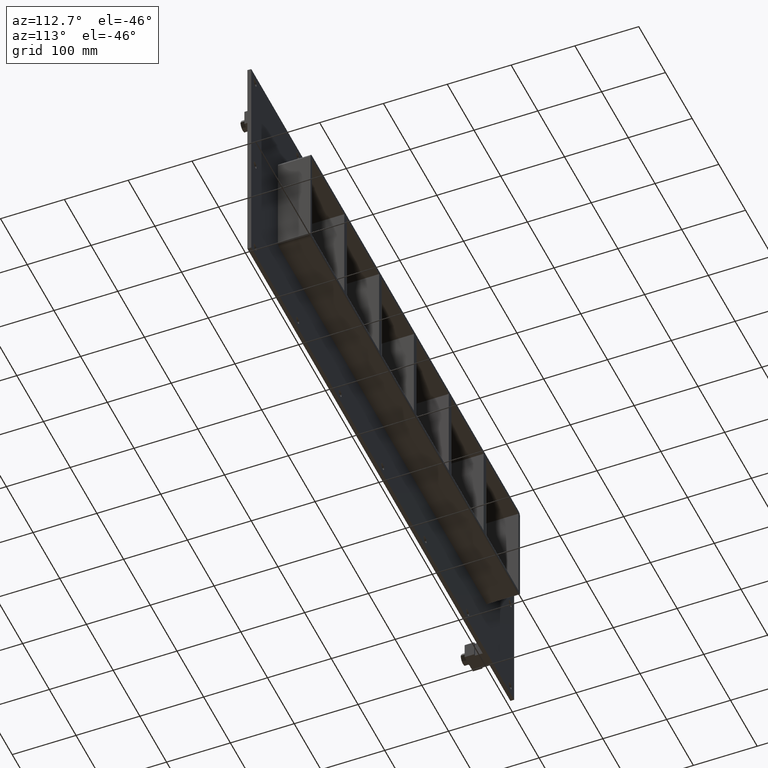
[diagram: clean part render]
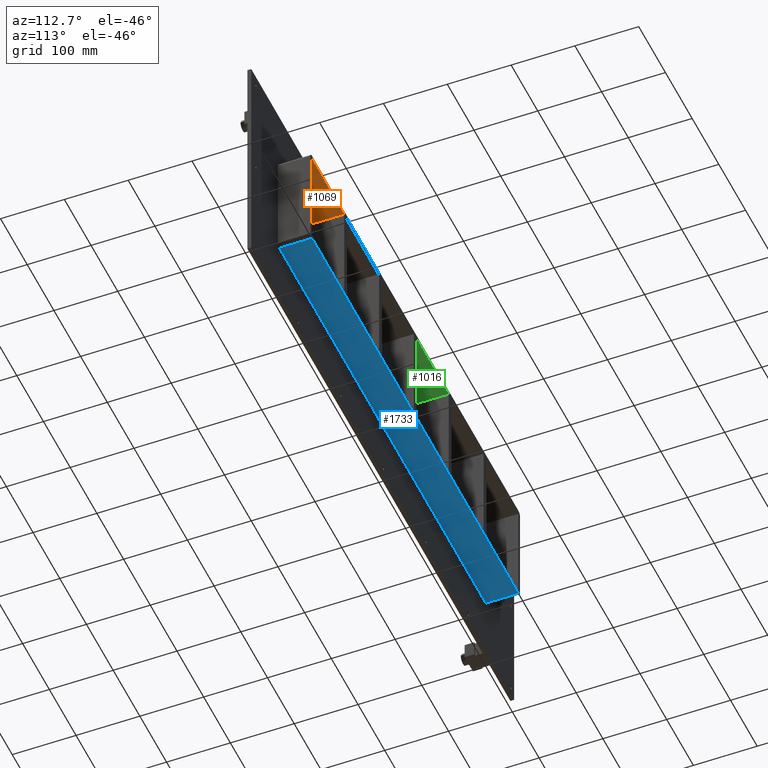
[diagram: same view with three faces highlighted in distinct colors, each labeled with its STEP entity id]
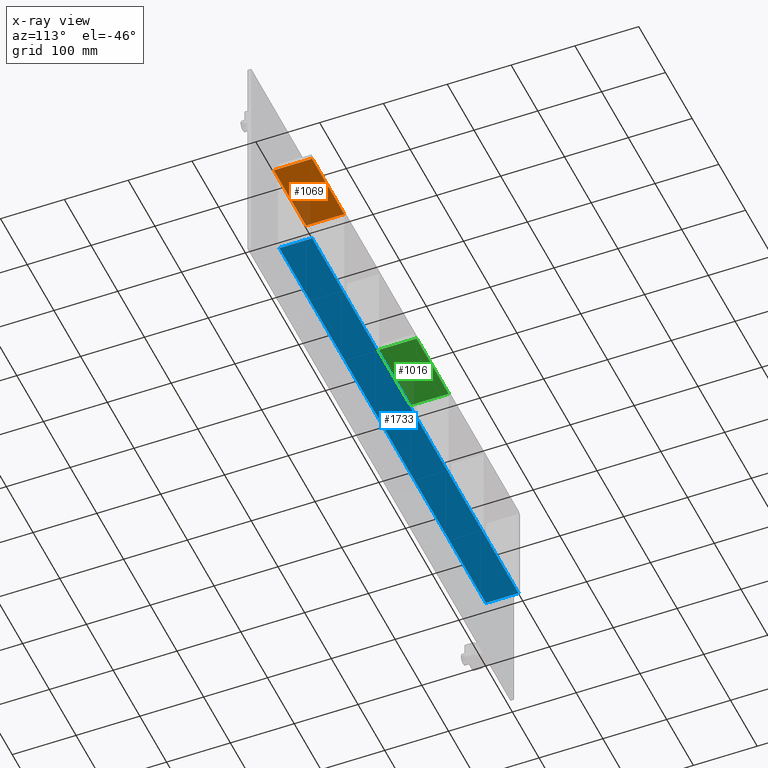
[diagram: x-ray of the same camera — body ghosted, the three highlighted faces saturated]
A machine part, auxiliary view with three faces highlighted in distinct colors.
The next image is the same camera in x-ray (body ghosted, the three faces saturated) — at least one of them is partly hidden behind the body in this view.
Their STEP definitions:

[orange] entity #1069 — the highlighted planar face has unit normal (0, 0, 1).
#561=CARTESIAN_POINT('',(265.99999999999642,-3.0,79.749999999999972));
#562=VERTEX_POINT('',#561);
#579=CARTESIAN_POINT('',(265.99999999999642,57.0,79.749999999999972));
#580=VERTEX_POINT('',#579);
#587=CARTESIAN_POINT('',(265.99999999999636,-3.0,79.750000000000014));
#588=DIRECTION('',(0.0,1.0,0.0));
#589=VECTOR('',#588,60.000000000000007);
#590=LINE('',#587,#589);
#591=EDGE_CURVE('',#562,#580,#590,.T.);
#1039=CARTESIAN_POINT('',(-386.50000000000006,0.0,79.750000000000014));
#1040=DIRECTION('',(0.0,0.0,1.0));
#1041=DIRECTION('',(1.0,0.0,0.0));
#1042=AXIS2_PLACEMENT_3D('',#1039,#1040,#1041);
#1043=PLANE('',#1042);
#1044=ORIENTED_EDGE('',*,*,#591,.T.);
#1045=CARTESIAN_POINT('',(386.50000000000006,57.0,79.749999999999972));
#1046=VERTEX_POINT('',#1045);
#1047=CARTESIAN_POINT('',(386.50000000000011,57.0,79.750000000000014));
#1048=DIRECTION('',(-1.0,0.0,0.0));
#1049=VECTOR('',#1048,120.50000000000369);
#1050=LINE('',#1047,#1049);
#1051=EDGE_CURVE('',#1046,#580,#1050,.T.);
#1052=ORIENTED_EDGE('',*,*,#1051,.F.);
#1053=CARTESIAN_POINT('',(386.50000000000006,-3.0,79.749999999999972));
#1054=VERTEX_POINT('',#1053);
#1055=CARTESIAN_POINT('',(386.50000000000006,-3.0,79.749999999999972));
#1056=DIRECTION('',(0.0,1.0,0.0));
#1057=VECTOR('',#1056,60.0);
#1058=LINE('',#1055,#1057);
#1059=EDGE_CURVE('',#1054,#1046,#1058,.T.);
#1060=ORIENTED_EDGE('',*,*,#1059,.F.);
#1061=CARTESIAN_POINT('',(265.99999999999642,-3.0,79.750000000000014));
#1062=DIRECTION('',(1.0,0.0,0.0));
#1063=VECTOR('',#1062,120.50000000000369);
#1064=LINE('',#1061,#1063);
#1065=EDGE_CURVE('',#562,#1054,#1064,.T.);
#1066=ORIENTED_EDGE('',*,*,#1065,.F.);
#1067=EDGE_LOOP('',(#1044,#1052,#1060,#1066));
#1068=FACE_OUTER_BOUND('',#1067,.T.);
#1069=ADVANCED_FACE('',(#1068),#1043,.F.);

[blue] entity #1733 — the highlighted planar face has unit normal (0, 0, -1).
#1322=CARTESIAN_POINT('',(-386.49999999999989,6.000000000000001,-85.750000000000028));
#1323=VERTEX_POINT('',#1322);
#1331=CARTESIAN_POINT('',(386.50000000000023,6.000000000000001,-85.750000000000028));
#1332=VERTEX_POINT('',#1331);
#1333=CARTESIAN_POINT('',(386.50000000000017,6.000000000000001,-85.750000000000028));
#1334=DIRECTION('',(-1.0,0.0,0.0));
#1335=VECTOR('',#1334,773.00000000000011);
#1336=LINE('',#1333,#1335);
#1337=EDGE_CURVE('',#1332,#1323,#1336,.T.);
#1660=CARTESIAN_POINT('',(386.50000000000023,57.0,-85.750000000000028));
#1661=VERTEX_POINT('',#1660);
#1662=CARTESIAN_POINT('',(386.50000000000023,6.000000000000001,-85.750000000000028));
#1663=DIRECTION('',(0.0,1.0,0.0));
#1664=VECTOR('',#1663,51.0);
#1665=LINE('',#1662,#1664);
#1666=EDGE_CURVE('',#1332,#1661,#1665,.T.);
#1710=CARTESIAN_POINT('',(392.50000000000011,0.0,-85.750000000000028));
#1711=DIRECTION('',(0.0,0.0,-1.0));
#1712=DIRECTION('',(-1.0,0.0,0.0));
#1713=AXIS2_PLACEMENT_3D('',#1710,#1711,#1712);
#1714=PLANE('',#1713);
#1715=ORIENTED_EDGE('',*,*,#1337,.T.);
#1716=CARTESIAN_POINT('',(-386.49999999999989,57.0,-85.750000000000028));
#1717=VERTEX_POINT('',#1716);
#1718=CARTESIAN_POINT('',(-386.49999999999989,57.0,-85.750000000000028));
#1719=DIRECTION('',(0.0,-1.0,0.0));
#1720=VECTOR('',#1719,51.0);
#1721=LINE('',#1718,#1720);
#1722=EDGE_CURVE('',#1717,#1323,#1721,.T.);
#1723=ORIENTED_EDGE('',*,*,#1722,.F.);
#1724=CARTESIAN_POINT('',(386.50000000000017,57.0,-85.750000000000028));
#1725=DIRECTION('',(-1.0,0.0,0.0));
#1726=VECTOR('',#1725,773.0);
#1727=LINE('',#1724,#1726);
#1728=EDGE_CURVE('',#1661,#1717,#1727,.T.);
#1729=ORIENTED_EDGE('',*,*,#1728,.F.);
#1730=ORIENTED_EDGE('',*,*,#1666,.F.);
#1731=EDGE_LOOP('',(#1715,#1723,#1729,#1730));
#1732=FACE_OUTER_BOUND('',#1731,.T.);
#1733=ADVANCED_FACE('',(#1732),#1714,.T.);

[green] entity #1016 — the highlighted planar face has unit normal (0, 0, 1).
#683=CARTESIAN_POINT('',(-4.999999999999218,-3.0,79.749999999999972));
#684=VERTEX_POINT('',#683);
#691=CARTESIAN_POINT('',(-4.999999999999218,57.0,79.749999999999972));
#692=VERTEX_POINT('',#691);
#693=CARTESIAN_POINT('',(-4.999999999999218,57.000000000000007,79.750000000000014));
#694=DIRECTION('',(0.0,-1.0,0.0));
#695=VECTOR('',#694,60.000000000000007);
#696=LINE('',#693,#695);
#697=EDGE_CURVE('',#692,#684,#696,.T.);
#801=CARTESIAN_POINT('',(-125.50000000000364,-3.0,79.749999999999972));
#802=VERTEX_POINT('',#801);
#819=CARTESIAN_POINT('',(-125.50000000000364,57.0,79.749999999999972));
#820=VERTEX_POINT('',#819);
#827=CARTESIAN_POINT('',(-125.50000000000365,-3.0,79.750000000000014));
#828=DIRECTION('',(0.0,1.0,0.0));
#829=VECTOR('',#828,60.000000000000007);
#830=LINE('',#827,#829);
#831=EDGE_CURVE('',#802,#820,#830,.T.);
#995=CARTESIAN_POINT('',(-386.50000000000006,0.0,79.750000000000014));
#996=DIRECTION('',(0.0,0.0,1.0));
#997=DIRECTION('',(1.0,0.0,0.0));
#998=AXIS2_PLACEMENT_3D('',#995,#996,#997);
#999=PLANE('',#998);
#1000=ORIENTED_EDGE('',*,*,#697,.T.);
#1001=CARTESIAN_POINT('',(-125.50000000000364,-3.0,79.750000000000014));
#1002=DIRECTION('',(1.0,0.0,0.0));
#1003=VECTOR('',#1002,120.50000000000441);
#1004=LINE('',#1001,#1003);
#1005=EDGE_CURVE('',#802,#684,#1004,.T.);
#1006=ORIENTED_EDGE('',*,*,#1005,.F.);
#1007=ORIENTED_EDGE('',*,*,#831,.T.);
#1008=CARTESIAN_POINT('',(-4.999999999999233,57.0,79.750000000000014));
#1009=DIRECTION('',(-1.0,0.0,0.0));
#1010=VECTOR('',#1009,120.50000000000441);
#1011=LINE('',#1008,#1010);
#1012=EDGE_CURVE('',#692,#820,#1011,.T.);
#1013=ORIENTED_EDGE('',*,*,#1012,.F.);
#1014=EDGE_LOOP('',(#1000,#1006,#1007,#1013));
#1015=FACE_OUTER_BOUND('',#1014,.T.);
#1016=ADVANCED_FACE('',(#1015),#999,.F.);